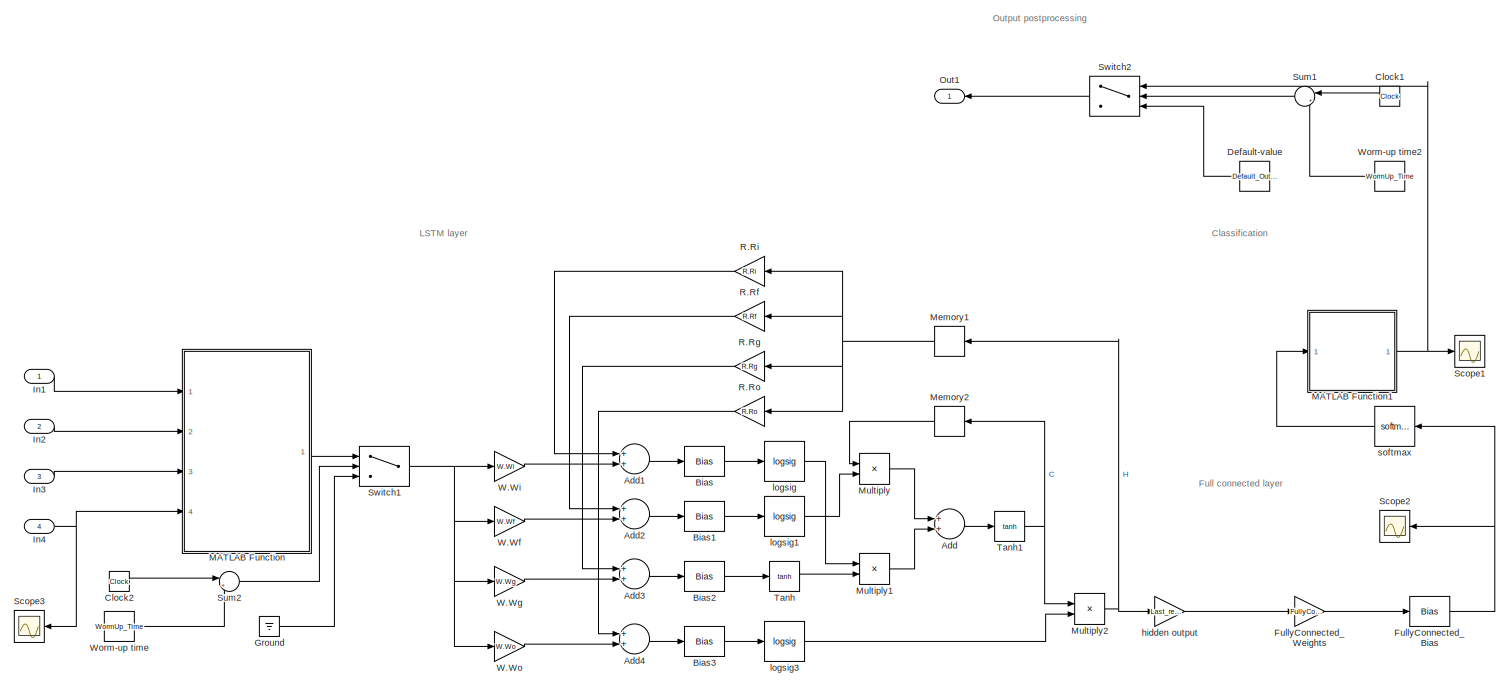
[diagram: root canvas - part 1/2, most of the canvas]
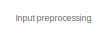
[diagram: root canvas - part 2/2, middle left region]
MODEL slx_24390a363ad8
KIND model
CONFIG AbsTol = auto
CONFIG EnableMultiTasking = off
CONFIG FixedStep = auto
CONFIG MaxStep = auto
CONFIG MinStep = auto
CONFIG RelTol = 1e-3
CONFIG SampleTimeConstraint = Unconstrained
CONFIG Solver = VariableStepAuto
CONFIG SolverName = VariableStepAuto
CONFIG StartTime = 0.0
CONFIG StopTime = 10.0
BLOCK [Sum] Add
  InputSameDT = off
  OutDataTypeStr = Inherit: Inherit via internal rule
  Ports = [2, 1]
  SaturateOnIntegerOverflow = off
BLOCK [Sum] Add1
  InputSameDT = off
  OutDataTypeStr = Inherit: Inherit via internal rule
  Ports = [2, 1]
  SaturateOnIntegerOverflow = off
BLOCK [Sum] Add2
  InputSameDT = off
  OutDataTypeStr = Inherit: Inherit via internal rule
  Ports = [2, 1]
  SaturateOnIntegerOverflow = off
BLOCK [Sum] Add3
  InputSameDT = off
  OutDataTypeStr = Inherit: Inherit via internal rule
  Ports = [2, 1]
  SaturateOnIntegerOverflow = off
BLOCK [Sum] Add4
  InputSameDT = off
  OutDataTypeStr = Inherit: Inherit via internal rule
  Ports = [2, 1]
  SaturateOnIntegerOverflow = off
BLOCK [Bias] Bias
  Bias = b.bi*ones(1,SequenceLength)
  SaturateOnIntegerOverflow = off
BLOCK [Bias] Bias1
  Bias = b.bf*ones(1,SequenceLength)
  SaturateOnIntegerOverflow = off
BLOCK [Bias] Bias2
  Bias = b.bg*ones(1,SequenceLength)
  SaturateOnIntegerOverflow = off
BLOCK [Bias] Bias3
  Bias = b.bo*ones(1,SequenceLength)
  SaturateOnIntegerOverflow = off
BLOCK [Clock] Clock1
BLOCK [Clock] Clock2
BLOCK [Constant] Default-value
  Value = Default_Output
BLOCK [Bias] FullyConnected_Bias
  Bias = FullyConnected_Bias
  SaturateOnIntegerOverflow = off
BLOCK [Gain] FullyConnected_Weights
  Gain = FullyConnected_Weights
  Multiplication = Matrix(K*u)
  OutDataTypeStr = Inherit: Inherit via internal rule
  ParamDataTypeStr = Inherit: Inherit via internal rule
  SaturateOnIntegerOverflow = off
BLOCK [Ground] Ground
BLOCK [Inport] In1
  IconDisplay = Port number
BLOCK [Inport] In2
  IconDisplay = Port number
  Port = 2
BLOCK [Inport] In3
  IconDisplay = Port number
  Port = 3
BLOCK [Inport] In4
  IconDisplay = Port number
  Port = 4
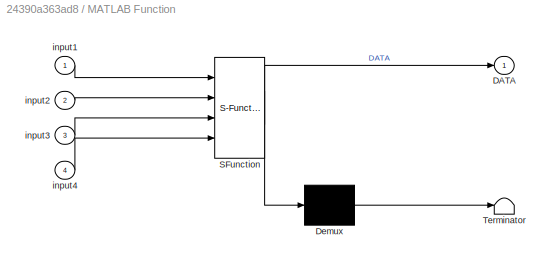
BLOCK [SubSystem] MATLAB Function
  ErrorFcn = Stateflow.Translate.translate
  PermitHierarchicalResolution = ExplicitOnly
  Ports = [4, 1]
  RequestExecContextInheritance = off
  SFBlockType = MATLAB Function
  TreatAsAtomicUnit = on
BLOCK [Demux] MATLAB Function/ Demux 
  Outputs = 1
  Ports = [1, 1]
BLOCK [S-Function] MATLAB Function/ SFunction 
  EnableBusSupport = off
  FunctionName = sf_sfun
  PortCounts = [4 2]
  Ports = [4, 2]
  SFcnIsStateOwnerBlock = off
  SFunctionDeploymentMode = off
  Tag = Stateflow S-Function LSTM_sim 2
BLOCK [Terminator] MATLAB Function/ Terminator 
BLOCK [Outport] MATLAB Function/DATA
  IconDisplay = Port number
BLOCK [Inport] MATLAB Function/input1
  IconDisplay = Port number
BLOCK [Inport] MATLAB Function/input2
  IconDisplay = Port number
  Port = 2
BLOCK [Inport] MATLAB Function/input3
  IconDisplay = Port number
  Port = 3
BLOCK [Inport] MATLAB Function/input4
  IconDisplay = Port number
  Port = 4
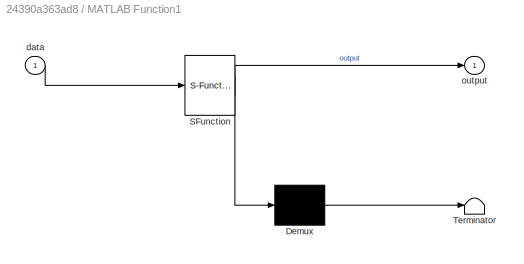
BLOCK [SubSystem] MATLAB Function1
  ErrorFcn = Stateflow.Translate.translate
  PermitHierarchicalResolution = ExplicitOnly
  Ports = [1, 1]
  RequestExecContextInheritance = off
  SFBlockType = MATLAB Function
  TreatAsAtomicUnit = on
BLOCK [Demux] MATLAB Function1/ Demux 
  Outputs = 1
  Ports = [1, 1]
BLOCK [S-Function] MATLAB Function1/ SFunction 
  EnableBusSupport = off
  FunctionName = sf_sfun
  PortCounts = [1 2]
  Ports = [1, 2]
  SFcnIsStateOwnerBlock = off
  SFunctionDeploymentMode = off
  Tag = Stateflow S-Function LSTM_sim 1
BLOCK [Terminator] MATLAB Function1/ Terminator 
BLOCK [Inport] MATLAB Function1/data
  IconDisplay = Port number
BLOCK [Outport] MATLAB Function1/output
  IconDisplay = Port number
BLOCK [Memory] Memory1
BLOCK [Memory] Memory2
BLOCK [Product] Multiply
  InputSameDT = off
  OutDataTypeStr = Inherit: Inherit via internal rule
  Ports = [2, 1]
  RndMeth = Floor
  SaturateOnIntegerOverflow = off
BLOCK [Product] Multiply1
  InputSameDT = off
  OutDataTypeStr = Inherit: Inherit via internal rule
  Ports = [2, 1]
  RndMeth = Floor
  SaturateOnIntegerOverflow = off
BLOCK [Product] Multiply2
  InputSameDT = off
  OutDataTypeStr = Inherit: Inherit via internal rule
  Ports = [2, 1]
  RndMeth = Floor
  SaturateOnIntegerOverflow = off
BLOCK [Outport] Out1
  IconDisplay = Port number
BLOCK [Gain] R.Rf
  Gain = R.Rf
  Multiplication = Matrix(K*u)
  OutDataTypeStr = Inherit: Inherit via internal rule
  ParamDataTypeStr = Inherit: Inherit via internal rule
  SaturateOnIntegerOverflow = off
BLOCK [Gain] R.Rg
  Gain = R.Rg
  Multiplication = Matrix(K*u)
  OutDataTypeStr = Inherit: Inherit via internal rule
  ParamDataTypeStr = Inherit: Inherit via internal rule
  SaturateOnIntegerOverflow = off
BLOCK [Gain] R.Ri
  Gain = R.Ri
  Multiplication = Matrix(K*u)
  OutDataTypeStr = Inherit: Inherit via internal rule
  ParamDataTypeStr = Inherit: Inherit via internal rule
  SaturateOnIntegerOverflow = off
BLOCK [Gain] R.Ro
  Gain = R.Ro
  Multiplication = Matrix(K*u)
  OutDataTypeStr = Inherit: Inherit via internal rule
  ParamDataTypeStr = Inherit: Inherit via internal rule
  SaturateOnIntegerOverflow = off
BLOCK [Scope] Scope1
  Floating = off
  NumInputPorts = 1
  Ports = [1]
  ScopeSpecificationString = Simulink.scopes.TimeScopeBlockCfg('CurrentConfiguration', extmgr.ConfigurationSet(extmgr.Configuration('Core','General UI',true),extmgr.Configuration('Core','Source UI',true),extmgr.Configuration('Sources','WiredSimulink',true,'DataLoggingVariableName','ScopeData1'),extmgr.Configuration('Visuals','Time Domain',true,'SerializedDisplays',{struct('MinYLimReal','0','MaxYLimReal','7','YLabelReal','','M...<+1559ch>
BLOCK [Scope] Scope2
  Floating = off
  NumInputPorts = 1
  Ports = [1]
  ScopeSpecificationString = Simulink.scopes.TimeScopeBlockCfg('CurrentConfiguration', extmgr.ConfigurationSet(extmgr.Configuration('Core','General UI',true),extmgr.Configuration('Core','Source UI',true),extmgr.Configuration('Sources','WiredSimulink',true,'DataLoggingVariableName','ScopeData2'),extmgr.Configuration('Visuals','Time Domain',true,'SerializedDisplays',{struct('MinYLimReal','-4.157','MaxYLimReal','5.06354','YLabel...<+1551ch>
BLOCK [Scope] Scope3
  Floating = off
  NumInputPorts = 1
  Ports = [1]
  ScopeSpecificationString = Simulink.scopes.TimeScopeBlockCfg('CurrentConfiguration', extmgr.ConfigurationSet(extmgr.Configuration('Core','General UI',true),extmgr.Configuration('Core','Source UI',true),extmgr.Configuration('Sources','WiredSimulink',true),extmgr.Configuration('Visuals','Time Domain',true,'SerializedDisplays',{struct('MinYLimReal','-0.75','MaxYLimReal','6.75','YLabelReal','','MinYLimMag','0.00000','MaxYLimMag...<+1375ch>
BLOCK [Sum] Sum1
  IconShape = round
  InputSameDT = off
  Inputs = |+-
  OutDataTypeStr = Inherit: Inherit via internal rule
  Ports = [2, 1]
  SaturateOnIntegerOverflow = off
BLOCK [Sum] Sum2
  IconShape = round
  InputSameDT = off
  Inputs = |+-
  OutDataTypeStr = Inherit: Inherit via internal rule
  Ports = [2, 1]
  SaturateOnIntegerOverflow = off
BLOCK [Switch] Switch1
  Criteria = u2 > Threshold
  InputSameDT = off
  SaturateOnIntegerOverflow = off
BLOCK [Switch] Switch2
  Criteria = u2 > Threshold
  InputSameDT = off
  SaturateOnIntegerOverflow = off
BLOCK [Trigonometry] Tanh
  Operator = tanh
  Ports = [1, 1]
BLOCK [Trigonometry] Tanh1
  Operator = tanh
  Ports = [1, 1]
BLOCK [Gain] W.Wf
  Gain = W.Wf
  Multiplication = Matrix(K*u)
  OutDataTypeStr = Inherit: Inherit via internal rule
  ParamDataTypeStr = Inherit: Inherit via internal rule
  SaturateOnIntegerOverflow = off
BLOCK [Gain] W.Wg
  Gain = W.Wg
  Multiplication = Matrix(K*u)
  OutDataTypeStr = Inherit: Inherit via internal rule
  ParamDataTypeStr = Inherit: Inherit via internal rule
  SaturateOnIntegerOverflow = off
BLOCK [Gain] W.Wi
  Gain = W.Wi
  Multiplication = Matrix(K*u)
  OutDataTypeStr = Inherit: Inherit via internal rule
  ParamDataTypeStr = Inherit: Inherit via internal rule
  SaturateOnIntegerOverflow = off
BLOCK [Gain] W.Wo
  Gain = W.Wo
  Multiplication = Matrix(K*u)
  OutDataTypeStr = Inherit: Inherit via internal rule
  ParamDataTypeStr = Inherit: Inherit via internal rule
  SaturateOnIntegerOverflow = off
BLOCK [Constant] Worm-up time
  Value = WormUp_Time
BLOCK [Constant] Worm-up time2
  Value = WormUp_Time
BLOCK [Gain] hidden output
  Gain = Last_result
  Multiplication = Matrix(u*K)
  OutDataTypeStr = Inherit: Inherit via internal rule
  ParamDataTypeStr = Inherit: Inherit via internal rule
  SaturateOnIntegerOverflow = off
BLOCK [Reference] logsig  REF=neural/Transfer Functions/logsig
  Ports = [1, 1]
  SourceBlock = neural/Transfer Functions/logsig
  SourceProductBaseCode = NN
  SourceProductName = Neural Network Toolbox
  SourceType = LOGSIG
BLOCK [Reference] logsig1  REF=neural/Transfer Functions/logsig
  Ports = [1, 1]
  SourceBlock = neural/Transfer Functions/logsig
  SourceProductBaseCode = NN
  SourceProductName = Neural Network Toolbox
  SourceType = LOGSIG
BLOCK [Reference] logsig3  REF=neural/Transfer Functions/logsig
  Ports = [1, 1]
  SourceBlock = neural/Transfer Functions/logsig
  SourceProductBaseCode = NN
  SourceProductName = Neural Network Toolbox
  SourceType = LOGSIG
BLOCK [Reference] softmax  REF=neural/Transfer Functions/softmax
  Ports = [1, 1]
  SourceBlock = neural/Transfer Functions/softmax
  SourceProductBaseCode = NN
  SourceProductName = Neural Network Toolbox
  SourceType = SOFTMAX
ANNOTATION (root): Classification
ANNOTATION (root): Full connected layer
ANNOTATION (root): Input preprocessing
ANNOTATION (root): LSTM layer
ANNOTATION (root): Output postprocessing
LINE Add1:1 -> Bias:1
LINE Add2:1 -> Bias1:1
LINE Add3:1 -> Bias2:1
LINE Add4:1 -> Bias3:1
LINE Add:1 -> Tanh1:1
LINE Bias1:1 -> logsig1:1
LINE Bias2:1 -> Tanh:1
LINE Bias3:1 -> logsig3:1
LINE Bias:1 -> logsig:1
LINE Clock1:1 -> Sum1:1
LINE Clock2:1 -> Sum2:1
LINE Default-value:1 -> Switch2:3
NET FullyConnected_Bias:1 -> Scope2:1, softmax:1
LINE FullyConnected_Weights:1 -> FullyConnected_Bias:1
LINE Ground:1 -> Switch1:3
LINE In1:1 -> MATLAB Function:1
LINE In2:1 -> MATLAB Function:2
LINE In3:1 -> MATLAB Function:3
NET In4:1 -> MATLAB Function:4, Scope3:1
NET MATLAB Function1:1 -> Scope1:1, Switch2:1
LINE MATLAB Function:1 -> Switch1:1
NET Memory1:1 -> R.Rf:1, R.Rg:1, R.Ri:1, R.Ro:1
LINE Memory2:1 -> Multiply:1
LINE Multiply1:1 -> Add:2
NET Multiply2:1 -> Memory1:1, hidden output:1
LINE Multiply:1 -> Add:1
LINE R.Rf:1 -> Add2:1
LINE R.Rg:1 -> Add3:1
LINE R.Ri:1 -> Add1:1
LINE R.Ro:1 -> Add4:1
LINE Sum1:1 -> Switch2:2
LINE Sum2:1 -> Switch1:2
NET Switch1:1 -> W.Wf:1, W.Wg:1, W.Wi:1, W.Wo:1
LINE Switch2:1 -> Out1:1
NET Tanh1:1 -> Memory2:1, Multiply2:1
LINE Tanh:1 -> Multiply1:2
LINE W.Wf:1 -> Add2:2
LINE W.Wg:1 -> Add3:2
LINE W.Wi:1 -> Add1:2
LINE W.Wo:1 -> Add4:2
LINE Worm-up time2:1 -> Sum1:2
LINE Worm-up time:1 -> Sum2:2
LINE hidden output:1 -> FullyConnected_Weights:1
LINE logsig1:1 -> Multiply:2
LINE logsig3:1 -> Multiply2:2
LINE logsig:1 -> Multiply1:1
LINE softmax:1 -> MATLAB Function1:1
note: NET lines group one-source signal fan-out (src -> all destinations, sorted); 1:1 wires keep LINE
CHART MATLAB Function1 states=1 transitions=1
  STATE_LABEL 'eML_blk_kernel()'
  STATE_LABEL 'SCRIPT:\nfunction output = categorize(data)\n\n[~,index] = max(data(:,end));\n\nif index == 1\n    class = 1;\nelseif index == 2\n    class = 2;\nelseif index == 2\n    class = 2;\nelseif index == 3\n    class = 3;\nelseif index == 4\n    class = 4;\nelseif index == 5\n    class = 5;\nelse\n    class = 6;\nend\n    \noutput = class;'
CHART MATLAB Function states=1 transitions=1
  STATE_LABEL 'eML_blk_kernel()'
  STATE_LABEL 'SCRIPT:\nfunction DATA = Data_stack(input1,input2,input3,input4)\n\npersistent save_input1; \npersistent save_input2; \npersistent save_input3; \npersistent save_input4; \n\nif isempty(save_input1)\n    save_input1 = zeros(1,SequenceLength);\n    save_input2 = zeros(1,SequenceLength);\n    save_input3 = zeros(1,SequenceLength);\n    save_input4 = zeros(1,SequenceLength);\nend\n\nfor i = 2:1:SequenceLength\n    sa...<+370ch>'
